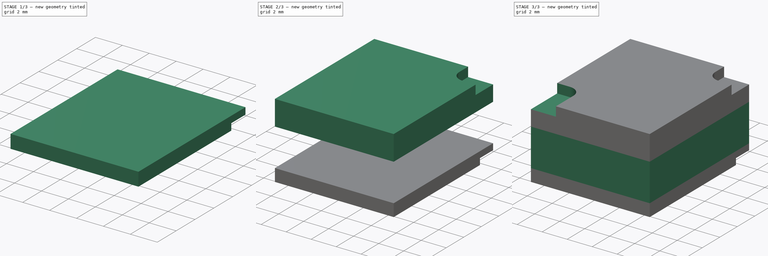
[diagram: build sequence overview — one tinted view per stage of 3, left to right]
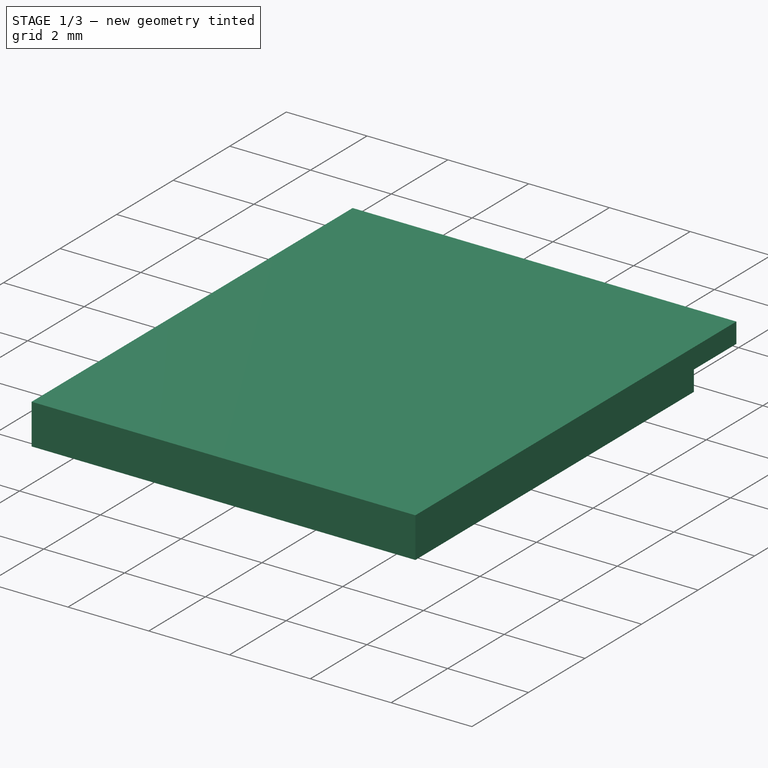
[diagram: stage 1 of 3 — iso view after this stage's code; geometry added in this stage tinted green]
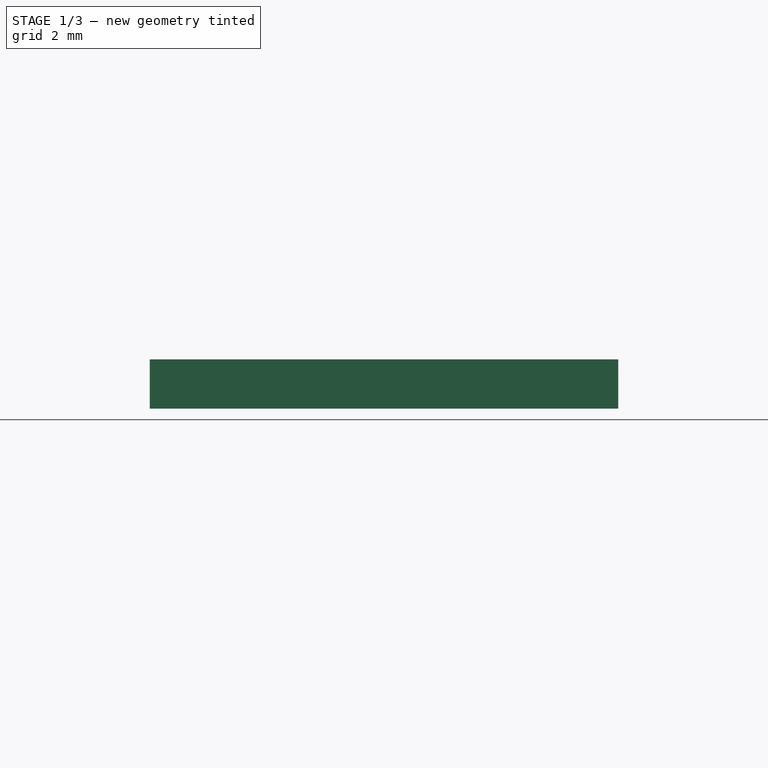
[diagram: stage 1 of 3 — front view after this stage's code; geometry added in this stage tinted green]
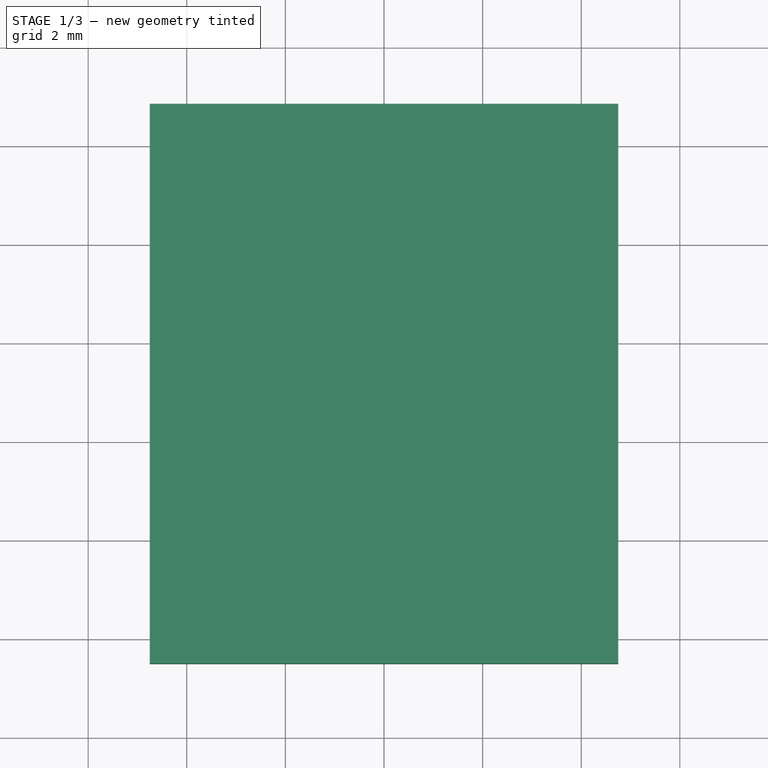
[diagram: stage 1 of 3 — top view after this stage's code; geometry added in this stage tinted green]
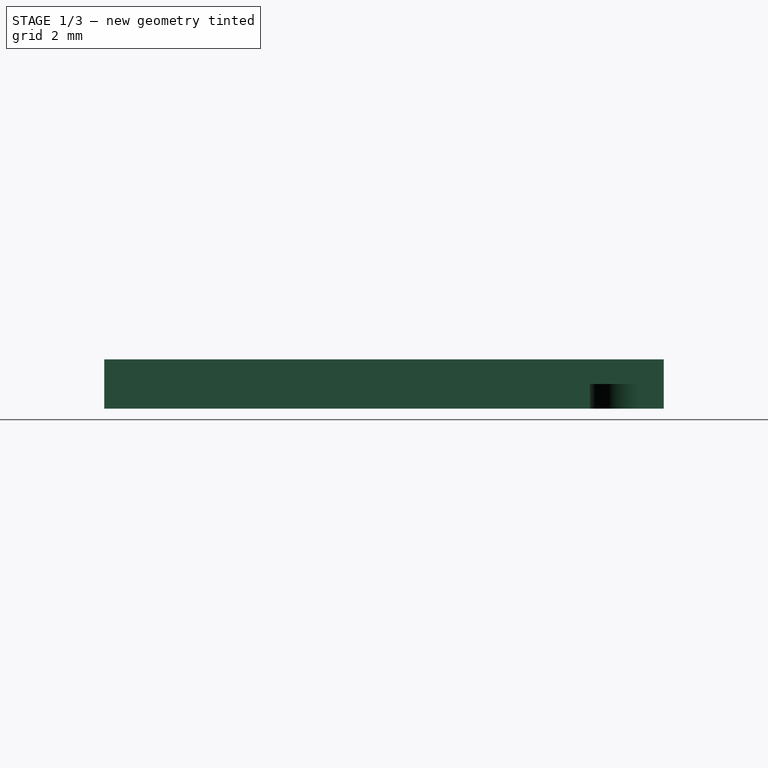
[diagram: stage 1 of 3 — right view after this stage's code; geometry added in this stage tinted green]
FCSTD DOCUMENT  (FreeCAD 0.18R16110 (Git))
Label: RD901F Datums Spreadsheet
License: All rights reserved
LicenseURL: http://en.wikipedia.org/wiki/All_rights_reserved
objects: Sketcher::SketchObject×7, PartDesign::Pad×3, PartDesign::Body×3, PartDesign::Pocket×3, Spreadsheet::Sheet×1, App::Part×1
note: 22 computed .brp shape members not serialized (recipe doc carries the construction recipe); baked Part::Feature solids carry a one-line shape summary decoded from their .brp

FEATURE [Spreadsheet::Sheet] Spreadsheet  label="Data"
  cells = A1=Type; B1=RD901F; A3=body_x; B3(body_x)==9.5mm; A4=body_y1; B4(body_y1)==4.85mm; A5=body_y2; B5(body_y2)==6.5mm; A6=body_z1; B6(body_z1)==1mm; C6==sum(B6:B8); A7=body_z2; B7(body_z2)==3mm; D7=sum 7.5 mm; A8=body_z3; B8(body_z3)==2mm; A10=cutout_r; B10(cutout_r)==1mm; A11=cutout_t_z; B11(cutout_t_z)==0.75mm; D11=less than body_z1 / z3; A12=cutout_b_z; B12(cutout_b_z)==0.5mm; A13=cutout_tr_x; B13(cutout_tr_x)==2mm; A14=cutout_tr_y; B14(cutout_tr_y)==2mm; A15=cutout_tl_x; B15(cutout_tl_x)==2mm; A16=cutout_tl_y; B16(cutout_tl_y)==3mm; A18=cutout_br_x; B18(cutout_br_x)==1.5mm; A19=cutout_br_y; B19(cutout_br_y)==1.5mm; A20=cutout_bl_x; B20(cutout_bl_x)=; A21==cutout_bl_y
FEATURE [Sketcher::SketchObject] Sketch
  MapMode = 5
  Support = -> [XY_Plane001]
  expr: Constraints[14] = Data.body_x
  expr: Constraints[13] = Data.body_y2
  expr: Constraints[12] = Data.body_y1
  sketch-geometry (5):
    g0: LineSegment StartX=-4.75 StartY=4.85 StartZ=0 EndX=4.75 EndY=4.85 EndZ=0
    g1: LineSegment StartX=4.75 StartY=4.85 StartZ=0 EndX=4.75 EndY=-6.5 EndZ=0
    g2: LineSegment StartX=4.75 StartY=-6.5 StartZ=0 EndX=-4.75 EndY=-6.5 EndZ=0
    g3: LineSegment StartX=-4.75 StartY=-6.5 StartZ=0 EndX=-4.75 EndY=4.85 EndZ=0
    g4: LineSegment [constr] StartX=-4.75 StartY=0 StartZ=0 EndX=4.75 EndY=0 EndZ=0
  constraints (15):
    c: Coincident(g0,g1)
    c: Coincident(g1,g2)
    c: Coincident(g2,g3)
    c: Coincident(g3,g0)
    c: Horizontal(g2)
    c: Vertical(g1)
    c: Vertical(g3)
    c: PointOnObject(g4,g3)
    c: PointOnObject(g4,g1)
    c: Horizontal(g4)
    c: PointOnObject(g4,g-1)
    c: Symmetric(g0,g0,g-2)
    c: DistanceY(g4,g0) = 4.85
    c: DistanceY(g1,g4) = 6.5
    c: DistanceX(g0,g0) = 9.5
FEATURE [PartDesign::Pad] Pad
  Length = 1
  Length2 = 100
  Profile = -> Sketch
  Type = 0
  expr: Length = Data.body_z1
FEATURE [PartDesign::Body] Body002  label="Housing_Top"
  Group = -> [Sketch001,Pad002,Sketch003,Pocket,Sketch004,Pocket001]
  Origin = -> Origin003
  Tip = -> Pocket001
FEATURE [Sketcher::SketchObject] Sketch005
  MapMode = 5
  Support = -> [XY_Plane001]
  expr: Constraints[13] = Data.body_y1
  expr: Constraints[12] = Data.body_x / 2
  expr: Constraints[11] = Data.cutout_br_y
  expr: Constraints[10] = Data.cutout_br_x
  expr: Constraints[9] = Data.cutout_r
  sketch-geometry (5):
    g0: LineSegment StartX=3.25 StartY=4.85 StartZ=0 EndX=4.75 EndY=4.85 EndZ=0
    g1: LineSegment StartX=4.75 StartY=4.85 StartZ=0 EndX=4.75 EndY=3.35 EndZ=0
    g2: LineSegment StartX=4.75 StartY=3.35 StartZ=0 EndX=4.25 EndY=3.35 EndZ=0
    g3: LineSegment StartX=3.25 StartY=4.35 StartZ=0 EndX=3.25 EndY=4.85 EndZ=0
    g4: ArcOfCircle CenterX=4.25 CenterY=4.35 CenterZ=0 NormalX=0 NormalY=0 NormalZ=1 AngleXU=0 Radius=1 StartAngle=3.14159 EndAngle=4.71239
  constraints (14):
    c: Coincident(g0,g1)
    c: Coincident(g1,g2)
    c: Coincident(g3,g0)
    c: Horizontal(g0)
    c: Horizontal(g2)
    c: Vertical(g1)
    c: Vertical(g3)
    c: Tangent(g2,g4) = 1.5708
    c: Tangent(g3,g4) = 1.5708
    c: DistanceX(g3,g4) = 1
    c: DistanceX(g3,g1) = 1.5
    c: DistanceY(g1,g0) = 1.5
    c: DistanceX(g-1,g0) = 4.75
    c: DistanceY(g-1,g0) = 4.85
FEATURE [PartDesign::Pocket] Pocket002
  BaseFeature = -> Pad
  Length = 0.5
  Length2 = 100
  Profile = -> Sketch005
  Reversed = true
  Type = 0
  expr: Length = Data.cutout_b_z
FEATURE [Sketcher::SketchObject] Sketch006
  MapMode = 5
  Support = -> [XY_Plane001]
  expr: Constraints[9] = Data.cutout_r
  sketch-geometry (5):
    g0: LineSegment StartX=-10.533 StartY=-4.30232 StartZ=0 EndX=-7.10391 EndY=-4.30232 EndZ=0
    g1: LineSegment StartX=-6.10391 StartY=-5.30232 StartZ=0 EndX=-6.10391 EndY=-9.31072 EndZ=0
    g2: LineSegment StartX=-6.10391 StartY=-9.31072 StartZ=0 EndX=-10.533 EndY=-9.31072 EndZ=0
    g3: LineSegment StartX=-10.533 StartY=-9.31072 StartZ=0 EndX=-10.533 EndY=-4.30232 EndZ=0
    g4: ArcOfCircle CenterX=-7.10391 CenterY=-5.30232 CenterZ=0 NormalX=0 NormalY=0 NormalZ=1 AngleXU=0 Radius=1 StartAngle=0 EndAngle=1.5708
  constraints (10):
    c: Coincident(g1,g2)
    c: Coincident(g2,g3)
    c: Coincident(g3,g0)
    c: Horizontal(g0)
    c: Horizontal(g2)
    c: Vertical(g1)
    c: Vertical(g3)
    c: Tangent(g0,g4) = 1.5708
    c: Tangent(g1,g4) = 1.5708
    c: DistanceX(g4,g1) = 1
FEATURE [PartDesign::Body] Body  label="Housing_Bottom"
  Group = -> [Sketch,Pad,Sketch005,Pocket002,Sketch006]
  Origin = -> Origin001
  Tip = -> Pocket002
FEATURE [App::Part] Part  label="RD901F-XX-XXX"
  Group = -> [Body,Body001,Body002]
  Origin = -> Origin
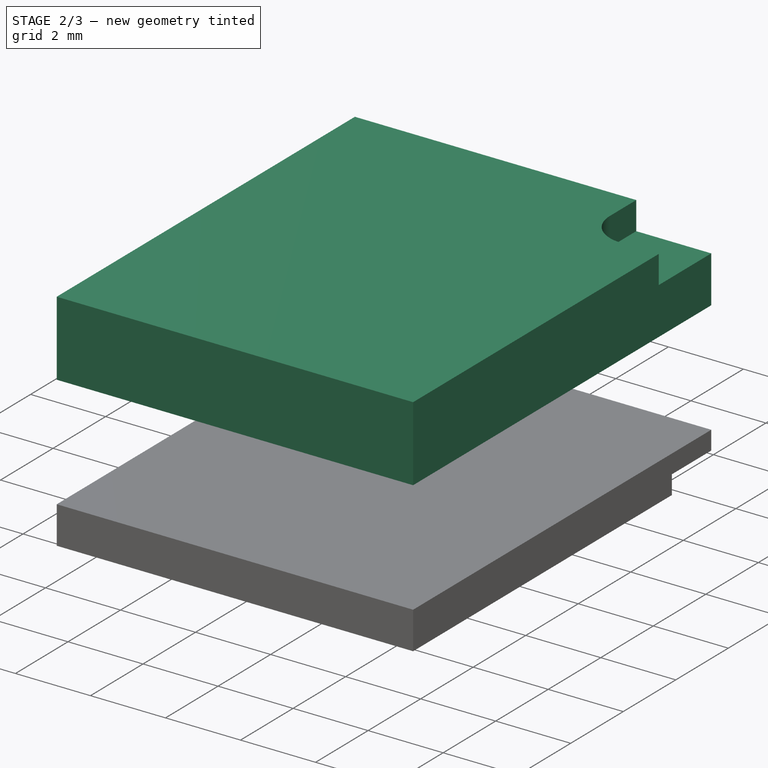
[diagram: stage 2 of 3 — iso view after this stage's code; geometry added in this stage tinted green]
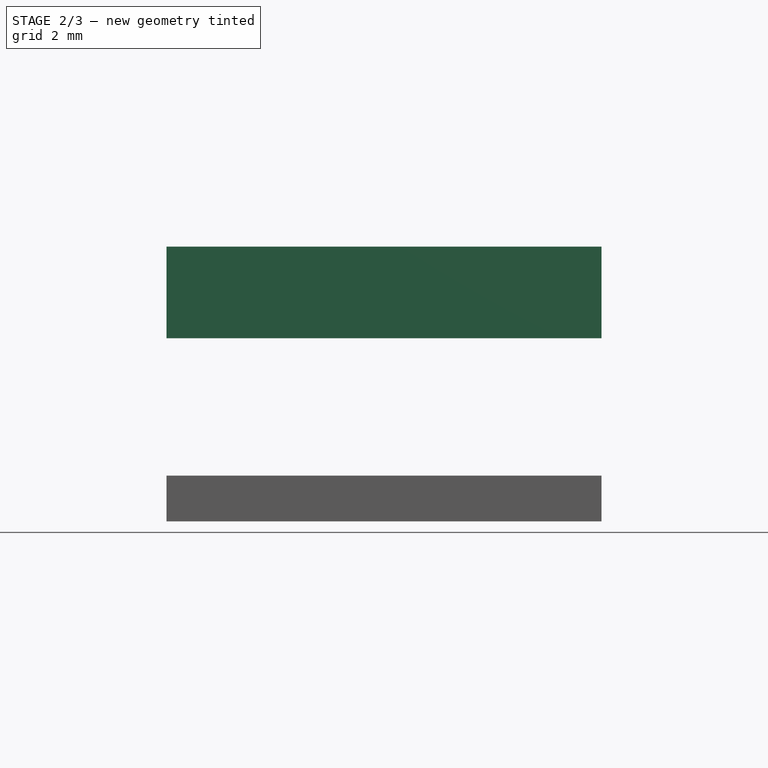
[diagram: stage 2 of 3 — front view after this stage's code; geometry added in this stage tinted green]
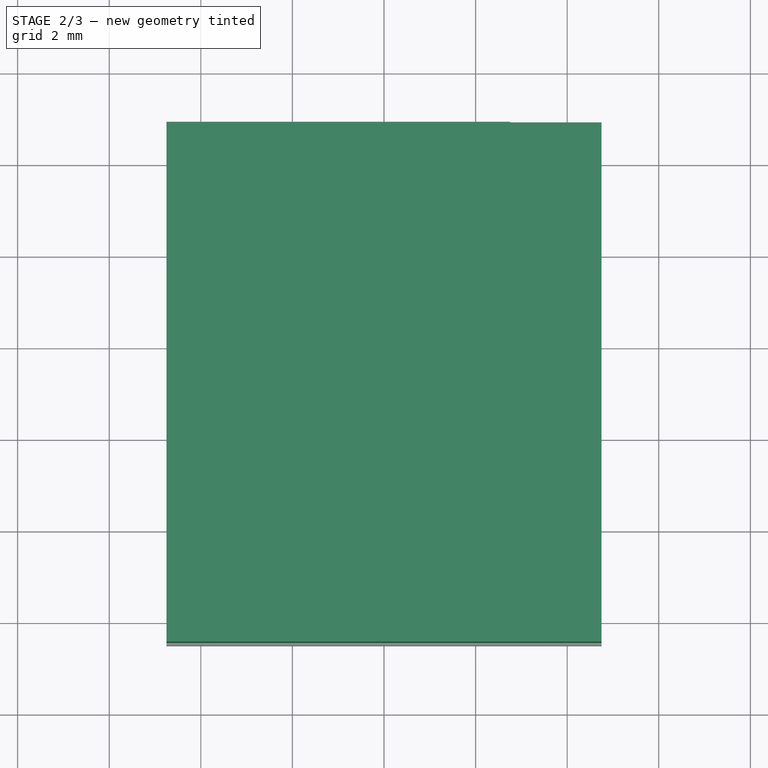
[diagram: stage 2 of 3 — top view after this stage's code; geometry added in this stage tinted green]
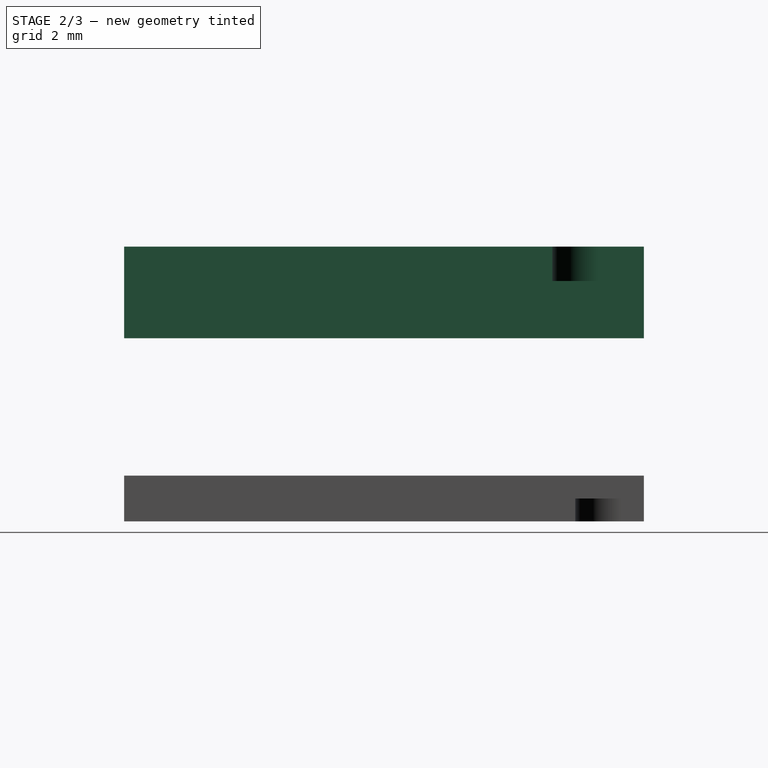
[diagram: stage 2 of 3 — right view after this stage's code; geometry added in this stage tinted green]
FEATURE [PartDesign::Body] Body001  label="Housing_Middle"
  Group = -> [Sketch002,Pad001]
  Origin = -> Origin002
  Tip = -> Pad001
FEATURE [PartDesign::Pad] Pad002
  Length = 2
  Length2 = 100
  Profile = -> Sketch001
  Type = 0
  expr: Length = Data.body_z3
FEATURE [Sketcher::SketchObject] Sketch003
  AttachmentOffset = pos=(0,0,6) rot=(0,0,1;0rad)
  MapMode = 5
  Placement = pos=(0,0,6) rot=(0,0,1;0rad)
  Support = -> [XY_Plane003]
  expr: Constraints[13] = Data.body_y1
  expr: Constraints[12] = Data.body_x / 2
  expr: Constraints[11] = Data.cutout_r
  expr: Constraints[10] = Data.cutout_tr_y
  expr: Constraints[9] = Data.cutout_tr_x
  expr: AttachmentOffset.Base.z = Data.body_z1 + Data.body_z2 + Data.body_z3
  sketch-geometry (5):
    g0: LineSegment StartX=2.75 StartY=4.85 StartZ=0 EndX=4.75 EndY=4.85 EndZ=0
    g1: LineSegment StartX=4.75 StartY=4.85 StartZ=0 EndX=4.75 EndY=2.85 EndZ=0
    g2: LineSegment StartX=4.75 StartY=2.85 StartZ=0 EndX=3.75 EndY=2.85 EndZ=0
    g3: LineSegment StartX=2.75 StartY=3.85 StartZ=0 EndX=2.75 EndY=4.85 EndZ=0
    g4: ArcOfCircle CenterX=3.75 CenterY=3.85 CenterZ=0 NormalX=0 NormalY=0 NormalZ=1 AngleXU=0 Radius=1 StartAngle=3.14159 EndAngle=4.71239
  constraints (14):
    c: Coincident(g0,g1)
    c: Coincident(g1,g2)
    c: Coincident(g3,g0)
    c: Horizontal(g0)
    c: Horizontal(g2)
    c: Vertical(g1)
    c: Vertical(g3)
    c: Tangent(g2,g4) = 1.5708
    c: Tangent(g3,g4) = 1.5708
    c: DistanceX(g0,g0) = 2
    c: DistanceY(g1,g1) = 2
    c: DistanceX(g3,g4) = 1
    c: DistanceX(g-1,g0) = 4.75
    c: DistanceY(g-1,g0) = 4.85
FEATURE [PartDesign::Pocket] Pocket
  BaseFeature = -> Pad002
  Length = 0.75
  Length2 = 100
  Profile = -> Sketch003
  Type = 0
  expr: Length = Data.cutout_t_z
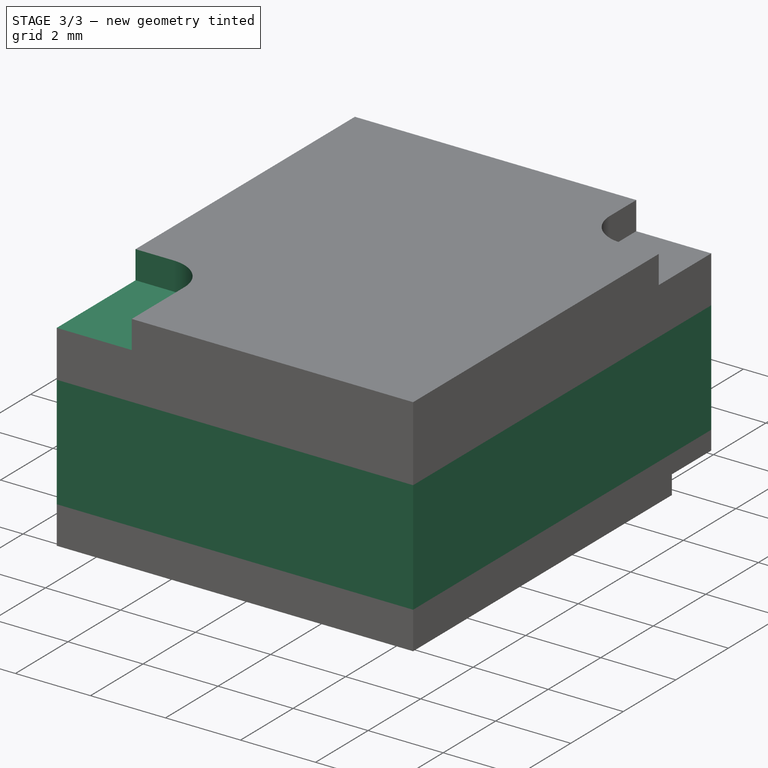
[diagram: stage 3 of 3 — iso view after this stage's code; geometry added in this stage tinted green]
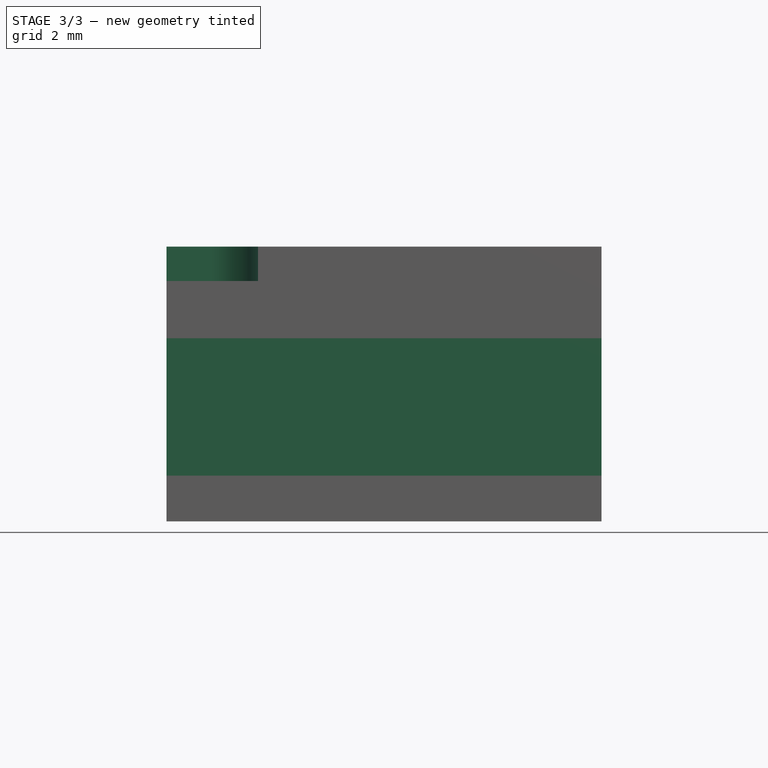
[diagram: stage 3 of 3 — front view after this stage's code; geometry added in this stage tinted green]
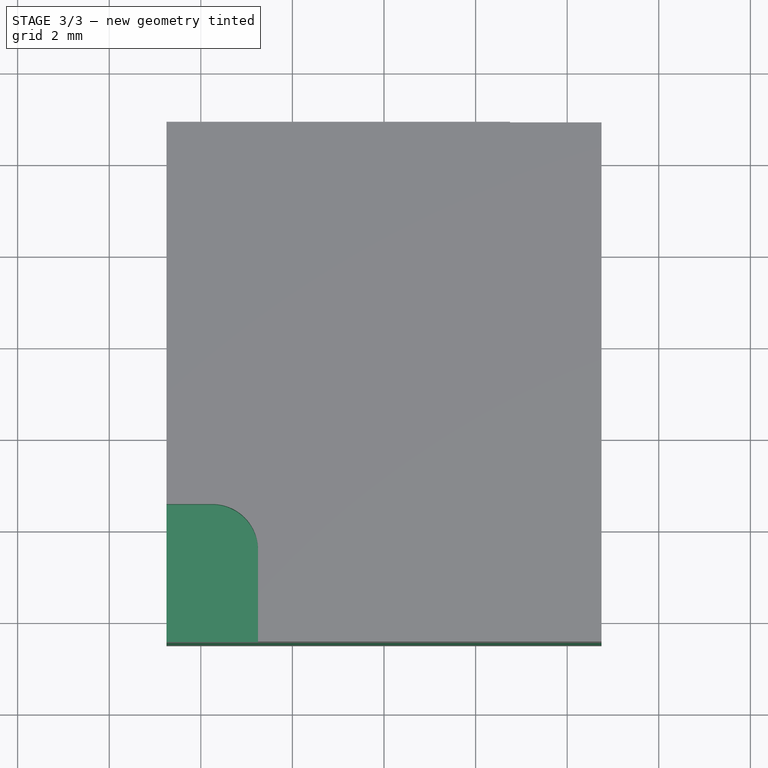
[diagram: stage 3 of 3 — top view after this stage's code; geometry added in this stage tinted green]
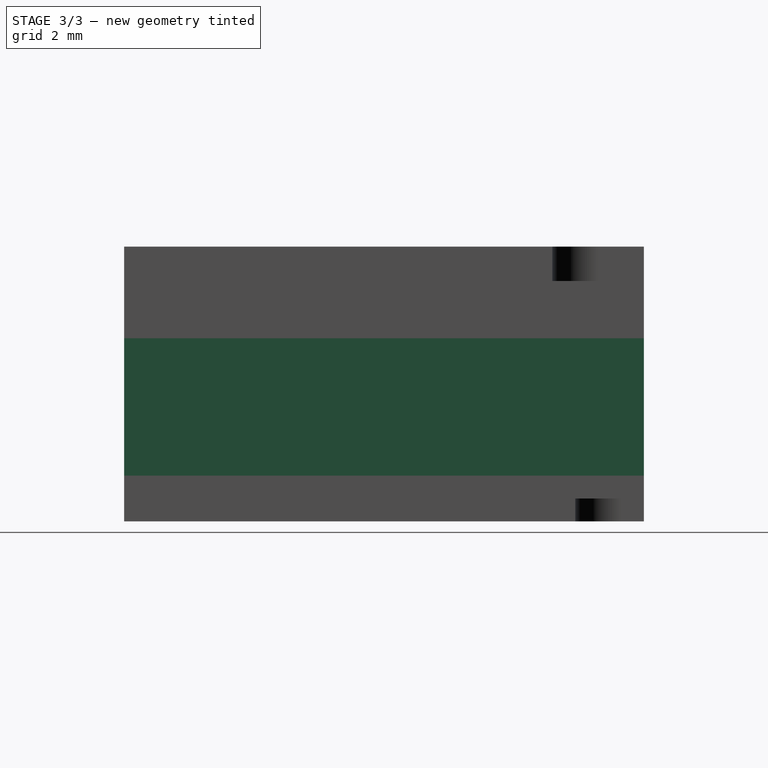
[diagram: stage 3 of 3 — right view after this stage's code; geometry added in this stage tinted green]
FEATURE [Sketcher::SketchObject] Sketch001
  AttachmentOffset = pos=(0,0,4) rot=(0,0,1;0rad)
  MapMode = 5
  Placement = pos=(0,0,4) rot=(0,0,1;0rad)
  Support = -> [XY_Plane002]
  expr: AttachmentOffset.Base.z = Data.body_z1 + Data.body_z2
  expr: Constraints[14] = Sketch.Constraints[14]
  expr: Constraints[13] = Sketch.Constraints[13]
  expr: Constraints[12] = Sketch.Constraints[12]
  sketch-geometry (5):
    g0: LineSegment StartX=-4.75 StartY=4.85 StartZ=0 EndX=4.75 EndY=4.85 EndZ=0
    g1: LineSegment StartX=4.75 StartY=4.85 StartZ=0 EndX=4.75 EndY=-6.5 EndZ=0
    g2: LineSegment StartX=4.75 StartY=-6.5 StartZ=0 EndX=-4.75 EndY=-6.5 EndZ=0
    g3: LineSegment StartX=-4.75 StartY=-6.5 StartZ=0 EndX=-4.75 EndY=4.85 EndZ=0
    g4: LineSegment [constr] StartX=-4.75 StartY=0 StartZ=0 EndX=4.75 EndY=0 EndZ=0
  constraints (15):
    c: Coincident(g0,g1)
    c: Coincident(g1,g2)
    c: Coincident(g2,g3)
    c: Coincident(g3,g0)
    c: Horizontal(g2)
    c: Vertical(g1)
    c: Vertical(g3)
    c: PointOnObject(g4,g3)
    c: PointOnObject(g4,g1)
    c: Horizontal(g4)
    c: PointOnObject(g4,g-1)
    c: Symmetric(g0,g0,g-2)
    c: DistanceY(g4,g0) = 4.85
    c: DistanceY(g1,g4) = 6.5
    c: DistanceX(g0,g0) = 9.5
FEATURE [Sketcher::SketchObject] Sketch002
  AttachmentOffset = pos=(0,0,1) rot=(0,0,1;0rad)
  MapMode = 5
  Placement = pos=(0,0,1) rot=(0,0,1;0rad)
  Support = -> [XY_Plane002]
  expr: AttachmentOffset.Base.z = Data.body_z1
  expr: Constraints[14] = Sketch.Constraints[14]
  expr: Constraints[13] = Sketch.Constraints[13]
  expr: Constraints[12] = Sketch.Constraints[12]
  sketch-geometry (5):
    g0: LineSegment StartX=-4.75 StartY=4.85 StartZ=0 EndX=4.75 EndY=4.85 EndZ=0
    g1: LineSegment StartX=4.75 StartY=4.85 StartZ=0 EndX=4.75 EndY=-6.5 EndZ=0
    g2: LineSegment StartX=4.75 StartY=-6.5 StartZ=0 EndX=-4.75 EndY=-6.5 EndZ=0
    g3: LineSegment StartX=-4.75 StartY=-6.5 StartZ=0 EndX=-4.75 EndY=4.85 EndZ=0
    g4: LineSegment [constr] StartX=-4.75 StartY=0 StartZ=0 EndX=4.75 EndY=0 EndZ=0
  constraints (15):
    c: Coincident(g0,g1)
    c: Coincident(g1,g2)
    c: Coincident(g2,g3)
    c: Coincident(g3,g0)
    c: Horizontal(g2)
    c: Vertical(g1)
    c: Vertical(g3)
    c: PointOnObject(g4,g3)
    c: PointOnObject(g4,g1)
    c: Horizontal(g4)
    c: PointOnObject(g4,g-1)
    c: Symmetric(g0,g0,g-2)
    c: DistanceY(g4,g0) = 4.85
    c: DistanceY(g1,g4) = 6.5
    c: DistanceX(g0,g0) = 9.5
FEATURE [PartDesign::Pad] Pad001
  Length = 3
  Length2 = 100
  Profile = -> Sketch002
  Type = 0
  expr: Length = Data.body_z2
FEATURE [Sketcher::SketchObject] Sketch004
  AttachmentOffset = pos=(0,0,6) rot=(0,0,1;0rad)
  MapMode = 5
  Placement = pos=(0,0,6) rot=(0,0,1;0rad)
  Support = -> [XY_Plane003]
  expr: AttachmentOffset.Base.z = Data.body_z1 + Data.body_z2 + Data.body_z3
  expr: Constraints[13] = Data.body_y2
  expr: Constraints[12] = Data.body_x / 2
  expr: Constraints[11] = Data.cutout_tl_y
  expr: Constraints[10] = Data.cutout_tl_x
  expr: Constraints[9] = Data.cutout_r
  sketch-geometry (5):
    g0: LineSegment StartX=-4.75 StartY=-3.5 StartZ=0 EndX=-3.75 EndY=-3.5 EndZ=0
    g1: LineSegment StartX=-2.75 StartY=-4.5 StartZ=0 EndX=-2.75 EndY=-6.5 EndZ=0
    g2: LineSegment StartX=-2.75 StartY=-6.5 StartZ=0 EndX=-4.75 EndY=-6.5 EndZ=0
    g3: LineSegment StartX=-4.75 StartY=-6.5 StartZ=0 EndX=-4.75 EndY=-3.5 EndZ=0
    g4: ArcOfCircle CenterX=-3.75 CenterY=-4.5 CenterZ=0 NormalX=0 NormalY=0 NormalZ=1 AngleXU=0 Radius=1 StartAngle=2e-16 EndAngle=1.5708
  constraints (14):
    c: Coincident(g1,g2)
    c: Coincident(g2,g3)
    c: Coincident(g3,g0)
    c: Horizontal(g0)
    c: Horizontal(g2)
    c: Vertical(g1)
    c: Vertical(g3)
    c: Tangent(g0,g4) = 1.5708
    c: Tangent(g1,g4) = 1.5708
    c: DistanceX(g4,g1) = 1
    c: DistanceX(g0,g1) = 2
    c: DistanceY(g2,g0) = 3
    c: DistanceX(g2,g-1) = 4.75
    c: DistanceY(g2,g-1) = 6.5
FEATURE [PartDesign::Pocket] Pocket001
  BaseFeature = -> Pocket
  Length = 0.75
  Length2 = 100
  Profile = -> Sketch004
  Type = 0
  expr: Length = Data.cutout_t_z
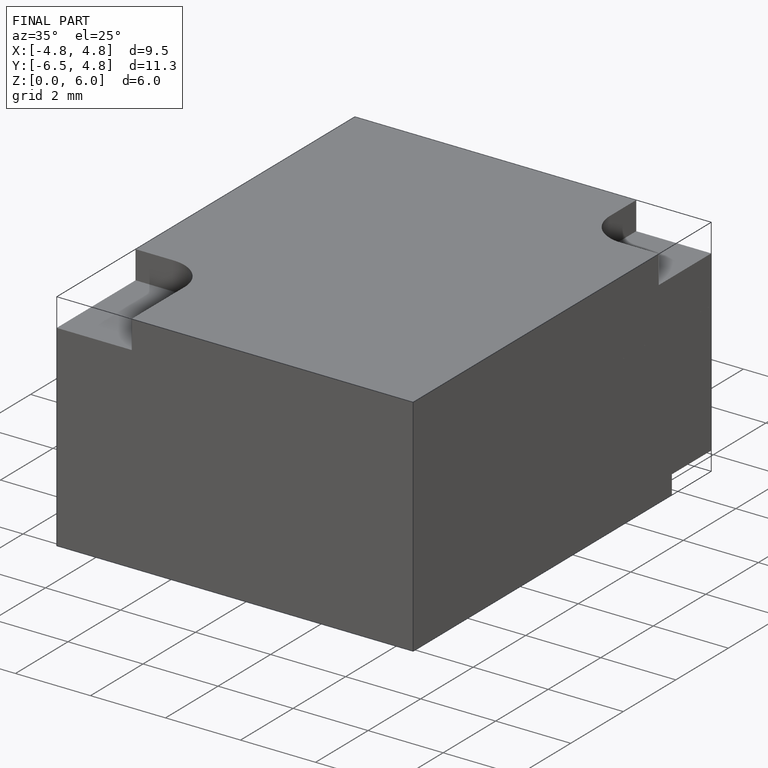
[diagram: finished part — iso view with bounding-box wireframe]
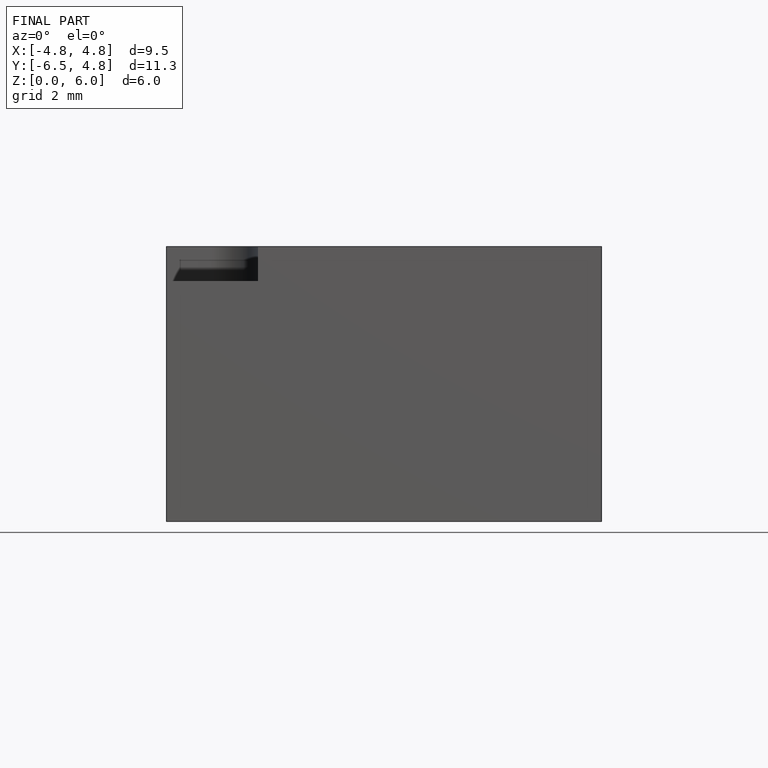
[diagram: finished part — front view with bounding-box wireframe]
